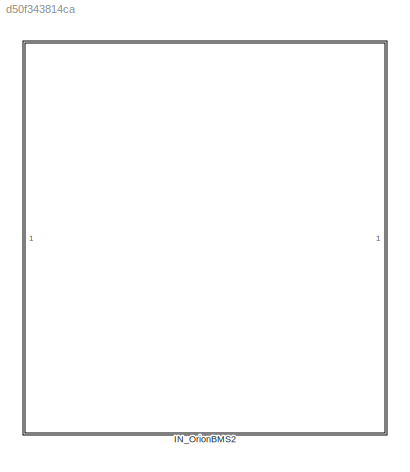
MODEL slx_d50f343814ca
KIND library
CONFIG AbsTol = auto
CONFIG EnableMultiTasking = off
CONFIG FixedStep = auto
CONFIG MaxStep = auto
CONFIG MinStep = auto
CONFIG RelTol = 1e-3
CONFIG SampleTimeConstraint = Unconstrained
CONFIG SolverName = VariableStepAuto
CONFIG StartTime = 0.0
CONFIG StopTime = 10.0
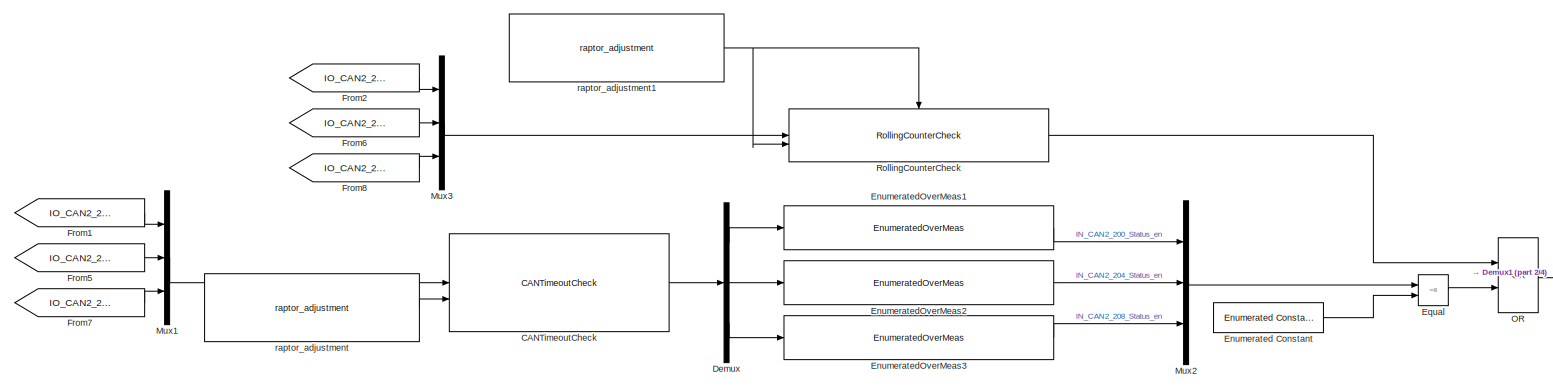
[diagram: IN_OrionBMS2 - part 1/4, top center region]
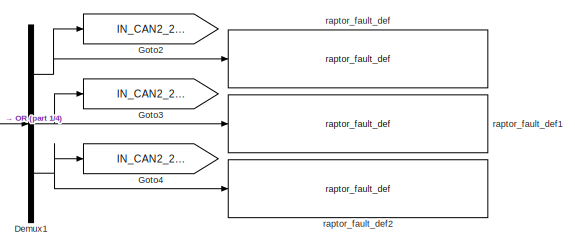
[diagram: IN_OrionBMS2 - part 2/4, top right region]
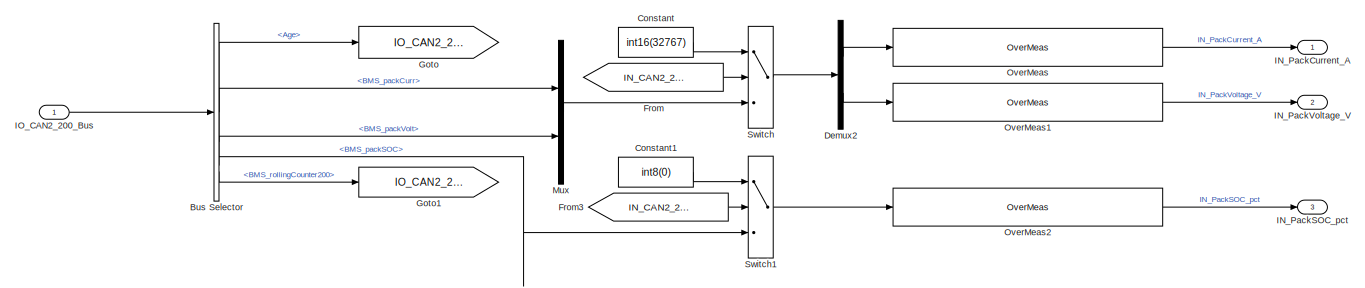
[diagram: IN_OrionBMS2 - part 3/4, central region]
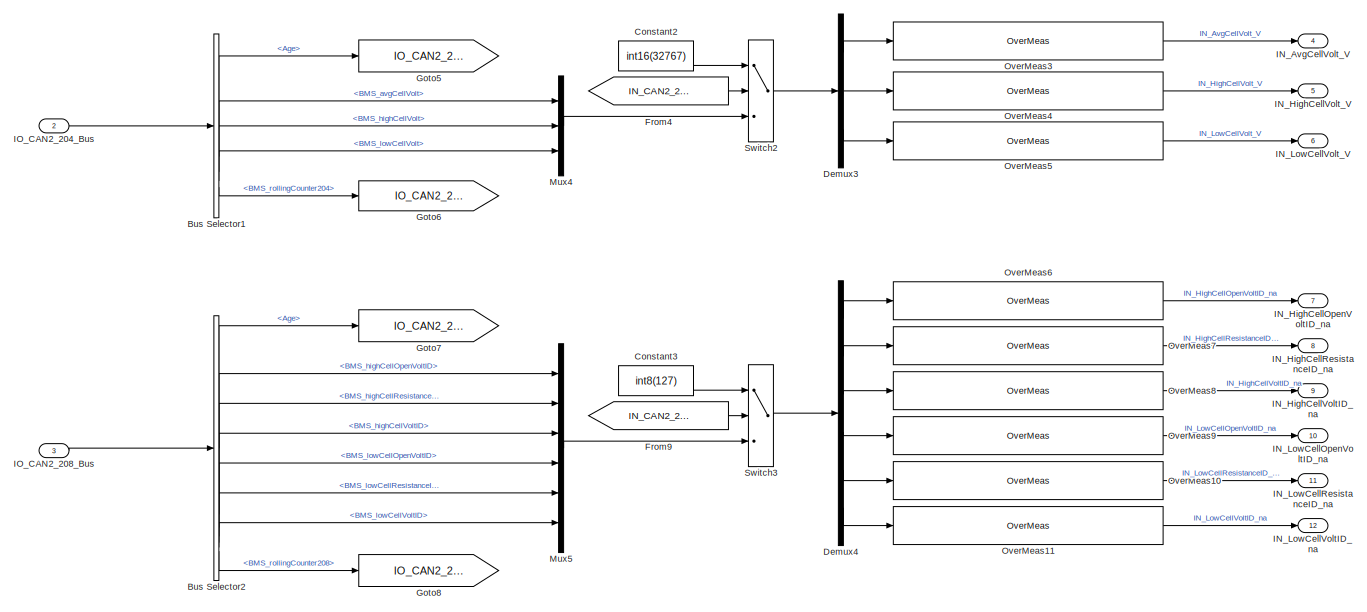
[diagram: IN_OrionBMS2 - part 4/4, bottom center region]
BLOCK [SubSystem] IN_OrionBMS2
BLOCK [BusSelector] IN_OrionBMS2/Bus Selector
  OutputSignals = Age,BMS_packCurr,BMS_packSOC,BMS_packVolt,BMS_rollingCounter200
BLOCK [BusSelector] IN_OrionBMS2/Bus Selector1
  OutputSignals = Age,BMS_avgCellVolt,BMS_highCellVolt,BMS_lowCellVolt,BMS_rollingCounter204
BLOCK [BusSelector] IN_OrionBMS2/Bus Selector2
  OutputSignals = Age,BMS_highCellOpenVoltID,BMS_highCellResistanceID,BMS_highCellVoltID,BMS_lowCellOpenVoltID,BMS_lowCellResistanceID,BMS_lowCellVoltID,BMS_rollingCounter208
BLOCK [Reference] IN_OrionBMS2/CANTimeoutCheck  REF=Utilities/CANTimeoutCheck
  SourceBlock = Utilities/CANTimeoutCheck
BLOCK [Constant] IN_OrionBMS2/Constant
  Value = int16(32767)
BLOCK [Constant] IN_OrionBMS2/Constant1
  Value = int8(0)
BLOCK [Constant] IN_OrionBMS2/Constant2
  Value = int16(32767)
BLOCK [Constant] IN_OrionBMS2/Constant3
  Value = int8(127)
BLOCK [Demux] IN_OrionBMS2/Demux
  Outputs = 3
BLOCK [Demux] IN_OrionBMS2/Demux1
  Outputs = 3
BLOCK [Demux] IN_OrionBMS2/Demux2
  Outputs = 2
BLOCK [Demux] IN_OrionBMS2/Demux3
  Outputs = 3
BLOCK [Demux] IN_OrionBMS2/Demux4
  Outputs = 6
BLOCK [Reference] IN_OrionBMS2/Enumerated Constant  REF=simulink/Sources/Enumerated
Constant
  SourceBlock = simulink/Sources/Enumerated\nConstant
  SourceType = Enumerated Constant
BLOCK [Reference] IN_OrionBMS2/EnumeratedOverMeas1  REF=Utilities/EnumeratedOverMeas
  SourceBlock = Utilities/EnumeratedOverMeas
BLOCK [Reference] IN_OrionBMS2/EnumeratedOverMeas2  REF=Utilities/EnumeratedOverMeas
  SourceBlock = Utilities/EnumeratedOverMeas
BLOCK [Reference] IN_OrionBMS2/EnumeratedOverMeas3  REF=Utilities/EnumeratedOverMeas
  SourceBlock = Utilities/EnumeratedOverMeas
BLOCK [RelationalOperator] IN_OrionBMS2/Equal
  InputSameDT = off
  Operator = ~=
  OutDataTypeStr = boolean
  RndMeth = Simplest
BLOCK [From] IN_OrionBMS2/From
  GotoTag = IN_CAN2_200_Fault
BLOCK [From] IN_OrionBMS2/From1
  GotoTag = IO_CAN2_200_Age
BLOCK [From] IN_OrionBMS2/From2
  GotoTag = IO_CAN2_200_cnt
BLOCK [From] IN_OrionBMS2/From3
  GotoTag = IN_CAN2_200_Fault
BLOCK [From] IN_OrionBMS2/From4
  GotoTag = IN_CAN2_204_Fault
BLOCK [From] IN_OrionBMS2/From5
  GotoTag = IO_CAN2_204_Age
BLOCK [From] IN_OrionBMS2/From6
  GotoTag = IO_CAN2_204_cnt
BLOCK [From] IN_OrionBMS2/From7
  GotoTag = IO_CAN2_208_Age
BLOCK [From] IN_OrionBMS2/From8
  GotoTag = IO_CAN2_208_Cnt
BLOCK [From] IN_OrionBMS2/From9
  GotoTag = IN_CAN2_208_Fault
BLOCK [Goto] IN_OrionBMS2/Goto
  GotoTag = IO_CAN2_200_Age
BLOCK [Goto] IN_OrionBMS2/Goto1
  GotoTag = IO_CAN2_200_cnt
BLOCK [Goto] IN_OrionBMS2/Goto2
  GotoTag = IN_CAN2_200_Fault
BLOCK [Goto] IN_OrionBMS2/Goto3
  GotoTag = IN_CAN2_204_Fault
BLOCK [Goto] IN_OrionBMS2/Goto4
  GotoTag = IN_CAN2_208_Fault
BLOCK [Goto] IN_OrionBMS2/Goto5
  GotoTag = IO_CAN2_204_Age
BLOCK [Goto] IN_OrionBMS2/Goto6
  GotoTag = IO_CAN2_204_cnt
BLOCK [Goto] IN_OrionBMS2/Goto7
  GotoTag = IO_CAN2_208_Age
BLOCK [Goto] IN_OrionBMS2/Goto8
  GotoTag = IO_CAN2_208_Cnt
BLOCK [Outport] IN_OrionBMS2/IN_AvgCellVolt_V
  Port = 4
BLOCK [Outport] IN_OrionBMS2/IN_HighCellOpenVoltID_na
  Port = 7
BLOCK [Outport] IN_OrionBMS2/IN_HighCellResistanceID_na
  Port = 8
BLOCK [Outport] IN_OrionBMS2/IN_HighCellVoltID_na
  Port = 9
BLOCK [Outport] IN_OrionBMS2/IN_HighCellVolt_V
  Port = 5
BLOCK [Outport] IN_OrionBMS2/IN_LowCellOpenVoltID_na
  Port = 10
BLOCK [Outport] IN_OrionBMS2/IN_LowCellResistanceID_na
  Port = 11
BLOCK [Outport] IN_OrionBMS2/IN_LowCellVoltID_na
  Port = 12
BLOCK [Outport] IN_OrionBMS2/IN_LowCellVolt_V
  Port = 6
BLOCK [Outport] IN_OrionBMS2/IN_PackCurrent_A
BLOCK [Outport] IN_OrionBMS2/IN_PackSOC_pct
  Port = 3
BLOCK [Outport] IN_OrionBMS2/IN_PackVoltage_V
  Port = 2
BLOCK [Inport] IN_OrionBMS2/IO_CAN2_200_Bus
BLOCK [Inport] IN_OrionBMS2/IO_CAN2_204_Bus
  Port = 2
BLOCK [Inport] IN_OrionBMS2/IO_CAN2_208_Bus
  Port = 3
BLOCK [Mux] IN_OrionBMS2/Mux
  DisplayOption = bar
  Inputs = 2
BLOCK [Mux] IN_OrionBMS2/Mux1
  DisplayOption = bar
  Inputs = 3
BLOCK [Mux] IN_OrionBMS2/Mux2
  DisplayOption = bar
  Inputs = 3
BLOCK [Mux] IN_OrionBMS2/Mux3
  DisplayOption = bar
  Inputs = 3
BLOCK [Mux] IN_OrionBMS2/Mux4
  DisplayOption = bar
  Inputs = 3
BLOCK [Mux] IN_OrionBMS2/Mux5
  DisplayOption = bar
  Inputs = 6
BLOCK [Logic] IN_OrionBMS2/OR
  AllPortsSameDT = off
  Operator = OR
  OutDataTypeStr = boolean
BLOCK [Reference] IN_OrionBMS2/OverMeas  REF=Utilities/OverMeas
  SourceBlock = Utilities/OverMeas
BLOCK [Reference] IN_OrionBMS2/OverMeas1  REF=Utilities/OverMeas
  SourceBlock = Utilities/OverMeas
BLOCK [Reference] IN_OrionBMS2/OverMeas10  REF=Utilities/OverMeas
  SourceBlock = Utilities/OverMeas
BLOCK [Reference] IN_OrionBMS2/OverMeas11  REF=Utilities/OverMeas
  SourceBlock = Utilities/OverMeas
BLOCK [Reference] IN_OrionBMS2/OverMeas2  REF=Utilities/OverMeas
  SourceBlock = Utilities/OverMeas
BLOCK [Reference] IN_OrionBMS2/OverMeas3  REF=Utilities/OverMeas
  SourceBlock = Utilities/OverMeas
BLOCK [Reference] IN_OrionBMS2/OverMeas4  REF=Utilities/OverMeas
  SourceBlock = Utilities/OverMeas
BLOCK [Reference] IN_OrionBMS2/OverMeas5  REF=Utilities/OverMeas
  SourceBlock = Utilities/OverMeas
BLOCK [Reference] IN_OrionBMS2/OverMeas6  REF=Utilities/OverMeas
  SourceBlock = Utilities/OverMeas
BLOCK [Reference] IN_OrionBMS2/OverMeas7  REF=Utilities/OverMeas
  SourceBlock = Utilities/OverMeas
BLOCK [Reference] IN_OrionBMS2/OverMeas8  REF=Utilities/OverMeas
  SourceBlock = Utilities/OverMeas
BLOCK [Reference] IN_OrionBMS2/OverMeas9  REF=Utilities/OverMeas
  SourceBlock = Utilities/OverMeas
BLOCK [Reference] IN_OrionBMS2/RollingCounterCheck  REF=Utilities/RollingCounterCheck
  SourceBlock = Utilities/RollingCounterCheck
BLOCK [Switch] IN_OrionBMS2/Switch
  Criteria = u2 ~= 0
  InputSameDT = off
  SaturateOnIntegerOverflow = off
BLOCK [Switch] IN_OrionBMS2/Switch1
  Criteria = u2 ~= 0
  InputSameDT = off
  SaturateOnIntegerOverflow = off
BLOCK [Switch] IN_OrionBMS2/Switch2
  Criteria = u2 ~= 0
  InputSameDT = off
  SaturateOnIntegerOverflow = off
BLOCK [Switch] IN_OrionBMS2/Switch3
  Criteria = u2 ~= 0
  InputSameDT = off
  SaturateOnIntegerOverflow = off
BLOCK [Reference] IN_OrionBMS2/raptor_adjustment  REF=Raptor_lib/Data Storage/raptor_adjustment
  SourceBlock = Raptor_lib/Data Storage/raptor_adjustment
  SourceProductName = Raptor
  SourceType = Adjustment
BLOCK [Reference] IN_OrionBMS2/raptor_adjustment1  REF=Raptor_lib/Data Storage/raptor_adjustment
  SourceBlock = Raptor_lib/Data Storage/raptor_adjustment
  SourceProductName = Raptor
  SourceType = Adjustment
BLOCK [Reference] IN_OrionBMS2/raptor_fault_def  REF=Raptor_lib/Faults/raptor_fault_def
  SourceBlock = Raptor_lib/Faults/raptor_fault_def
  SourceProductName = Raptor
  SourceType = Fault Definition
BLOCK [Reference] IN_OrionBMS2/raptor_fault_def1  REF=Raptor_lib/Faults/raptor_fault_def
  SourceBlock = Raptor_lib/Faults/raptor_fault_def
  SourceProductName = Raptor
  SourceType = Fault Definition
BLOCK [Reference] IN_OrionBMS2/raptor_fault_def2  REF=Raptor_lib/Faults/raptor_fault_def
  SourceBlock = Raptor_lib/Faults/raptor_fault_def
  SourceProductName = Raptor
  SourceType = Fault Definition
LINE IN_OrionBMS2/Bus Selector1:1 -> IN_OrionBMS2/Goto5:1
LINE IN_OrionBMS2/Bus Selector1:2 -> IN_OrionBMS2/Mux4:1
LINE IN_OrionBMS2/Bus Selector1:3 -> IN_OrionBMS2/Mux4:2
LINE IN_OrionBMS2/Bus Selector1:4 -> IN_OrionBMS2/Mux4:3
LINE IN_OrionBMS2/Bus Selector1:5 -> IN_OrionBMS2/Goto6:1
LINE IN_OrionBMS2/Bus Selector2:1 -> IN_OrionBMS2/Goto7:1
LINE IN_OrionBMS2/Bus Selector2:2 -> IN_OrionBMS2/Mux5:1
LINE IN_OrionBMS2/Bus Selector2:3 -> IN_OrionBMS2/Mux5:2
LINE IN_OrionBMS2/Bus Selector2:4 -> IN_OrionBMS2/Mux5:3
LINE IN_OrionBMS2/Bus Selector2:5 -> IN_OrionBMS2/Mux5:4
LINE IN_OrionBMS2/Bus Selector2:6 -> IN_OrionBMS2/Mux5:5
LINE IN_OrionBMS2/Bus Selector2:7 -> IN_OrionBMS2/Mux5:6
LINE IN_OrionBMS2/Bus Selector2:8 -> IN_OrionBMS2/Goto8:1
LINE IN_OrionBMS2/Bus Selector:1 -> IN_OrionBMS2/Goto:1
LINE IN_OrionBMS2/Bus Selector:2 -> IN_OrionBMS2/Mux:1
LINE IN_OrionBMS2/Bus Selector:3 -> IN_OrionBMS2/Switch1:3
LINE IN_OrionBMS2/Bus Selector:4 -> IN_OrionBMS2/Mux:2
LINE IN_OrionBMS2/Bus Selector:5 -> IN_OrionBMS2/Goto1:1
LINE IN_OrionBMS2/CANTimeoutCheck:1 -> IN_OrionBMS2/Demux:1
LINE IN_OrionBMS2/Constant1:1 -> IN_OrionBMS2/Switch1:1
LINE IN_OrionBMS2/Constant2:1 -> IN_OrionBMS2/Switch2:1
LINE IN_OrionBMS2/Constant3:1 -> IN_OrionBMS2/Switch3:1
LINE IN_OrionBMS2/Constant:1 -> IN_OrionBMS2/Switch:1
NET IN_OrionBMS2/Demux1:1 -> IN_OrionBMS2/Goto2:1, IN_OrionBMS2/raptor_fault_def:1
NET IN_OrionBMS2/Demux1:2 -> IN_OrionBMS2/Goto3:1, IN_OrionBMS2/raptor_fault_def1:1
NET IN_OrionBMS2/Demux1:3 -> IN_OrionBMS2/Goto4:1, IN_OrionBMS2/raptor_fault_def2:1
LINE IN_OrionBMS2/Demux2:1 -> IN_OrionBMS2/OverMeas:1
LINE IN_OrionBMS2/Demux2:2 -> IN_OrionBMS2/OverMeas1:1
LINE IN_OrionBMS2/Demux3:1 -> IN_OrionBMS2/OverMeas3:1
LINE IN_OrionBMS2/Demux3:2 -> IN_OrionBMS2/OverMeas4:1
LINE IN_OrionBMS2/Demux3:3 -> IN_OrionBMS2/OverMeas5:1
LINE IN_OrionBMS2/Demux4:1 -> IN_OrionBMS2/OverMeas6:1
LINE IN_OrionBMS2/Demux4:2 -> IN_OrionBMS2/OverMeas7:1
LINE IN_OrionBMS2/Demux4:3 -> IN_OrionBMS2/OverMeas8:1
LINE IN_OrionBMS2/Demux4:4 -> IN_OrionBMS2/OverMeas9:1
LINE IN_OrionBMS2/Demux4:5 -> IN_OrionBMS2/OverMeas10:1
LINE IN_OrionBMS2/Demux4:6 -> IN_OrionBMS2/OverMeas11:1
LINE IN_OrionBMS2/Demux:1 -> IN_OrionBMS2/EnumeratedOverMeas1:1
LINE IN_OrionBMS2/Demux:2 -> IN_OrionBMS2/EnumeratedOverMeas2:1
LINE IN_OrionBMS2/Demux:3 -> IN_OrionBMS2/EnumeratedOverMeas3:1
LINE IN_OrionBMS2/Enumerated Constant:1 -> IN_OrionBMS2/Equal:2
LINE IN_OrionBMS2/EnumeratedOverMeas1:1 -> IN_OrionBMS2/Mux2:1
LINE IN_OrionBMS2/EnumeratedOverMeas2:1 -> IN_OrionBMS2/Mux2:2
LINE IN_OrionBMS2/EnumeratedOverMeas3:1 -> IN_OrionBMS2/Mux2:3
LINE IN_OrionBMS2/Equal:1 -> IN_OrionBMS2/OR:2
LINE IN_OrionBMS2/From1:1 -> IN_OrionBMS2/Mux1:1
LINE IN_OrionBMS2/From2:1 -> IN_OrionBMS2/Mux3:1
LINE IN_OrionBMS2/From3:1 -> IN_OrionBMS2/Switch1:2
LINE IN_OrionBMS2/From4:1 -> IN_OrionBMS2/Switch2:2
LINE IN_OrionBMS2/From5:1 -> IN_OrionBMS2/Mux1:2
LINE IN_OrionBMS2/From6:1 -> IN_OrionBMS2/Mux3:2
LINE IN_OrionBMS2/From7:1 -> IN_OrionBMS2/Mux1:3
LINE IN_OrionBMS2/From8:1 -> IN_OrionBMS2/Mux3:3
LINE IN_OrionBMS2/From9:1 -> IN_OrionBMS2/Switch3:2
LINE IN_OrionBMS2/From:1 -> IN_OrionBMS2/Switch:2
LINE IN_OrionBMS2/IO_CAN2_200_Bus:1 -> IN_OrionBMS2/Bus Selector:1
LINE IN_OrionBMS2/IO_CAN2_204_Bus:1 -> IN_OrionBMS2/Bus Selector1:1
LINE IN_OrionBMS2/IO_CAN2_208_Bus:1 -> IN_OrionBMS2/Bus Selector2:1
LINE IN_OrionBMS2/Mux1:1 -> IN_OrionBMS2/CANTimeoutCheck:1
LINE IN_OrionBMS2/Mux2:1 -> IN_OrionBMS2/Equal:1
LINE IN_OrionBMS2/Mux3:1 -> IN_OrionBMS2/RollingCounterCheck:1
LINE IN_OrionBMS2/Mux4:1 -> IN_OrionBMS2/Switch2:3
LINE IN_OrionBMS2/Mux5:1 -> IN_OrionBMS2/Switch3:3
LINE IN_OrionBMS2/Mux:1 -> IN_OrionBMS2/Switch:3
LINE IN_OrionBMS2/OR:1 -> IN_OrionBMS2/Demux1:1
LINE IN_OrionBMS2/OverMeas10:1 -> IN_OrionBMS2/IN_LowCellResistanceID_na:1
LINE IN_OrionBMS2/OverMeas11:1 -> IN_OrionBMS2/IN_LowCellVoltID_na:1
LINE IN_OrionBMS2/OverMeas1:1 -> IN_OrionBMS2/IN_PackVoltage_V:1
LINE IN_OrionBMS2/OverMeas2:1 -> IN_OrionBMS2/IN_PackSOC_pct:1
LINE IN_OrionBMS2/OverMeas3:1 -> IN_OrionBMS2/IN_AvgCellVolt_V:1
LINE IN_OrionBMS2/OverMeas4:1 -> IN_OrionBMS2/IN_HighCellVolt_V:1
LINE IN_OrionBMS2/OverMeas5:1 -> IN_OrionBMS2/IN_LowCellVolt_V:1
LINE IN_OrionBMS2/OverMeas6:1 -> IN_OrionBMS2/IN_HighCellOpenVoltID_na:1
LINE IN_OrionBMS2/OverMeas7:1 -> IN_OrionBMS2/IN_HighCellResistanceID_na:1
LINE IN_OrionBMS2/OverMeas8:1 -> IN_OrionBMS2/IN_HighCellVoltID_na:1
LINE IN_OrionBMS2/OverMeas9:1 -> IN_OrionBMS2/IN_LowCellOpenVoltID_na:1
LINE IN_OrionBMS2/OverMeas:1 -> IN_OrionBMS2/IN_PackCurrent_A:1
LINE IN_OrionBMS2/RollingCounterCheck:1 -> IN_OrionBMS2/OR:1
LINE IN_OrionBMS2/Switch1:1 -> IN_OrionBMS2/OverMeas2:1
LINE IN_OrionBMS2/Switch2:1 -> IN_OrionBMS2/Demux3:1
LINE IN_OrionBMS2/Switch3:1 -> IN_OrionBMS2/Demux4:1
LINE IN_OrionBMS2/Switch:1 -> IN_OrionBMS2/Demux2:1
NET IN_OrionBMS2/raptor_adjustment1:1 -> IN_OrionBMS2/RollingCounterCheck:2, IN_OrionBMS2/RollingCounterCheck:enable
LINE IN_OrionBMS2/raptor_adjustment:1 -> IN_OrionBMS2/CANTimeoutCheck:2
note: NET lines group one-source signal fan-out (src -> all destinations, sorted); 1:1 wires keep LINE
